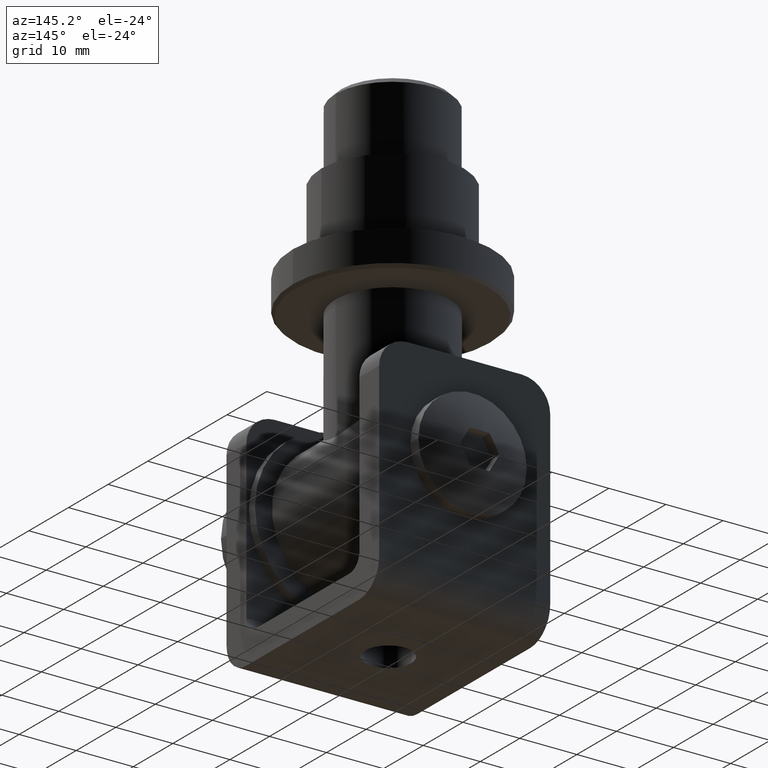
[diagram: clean part render]
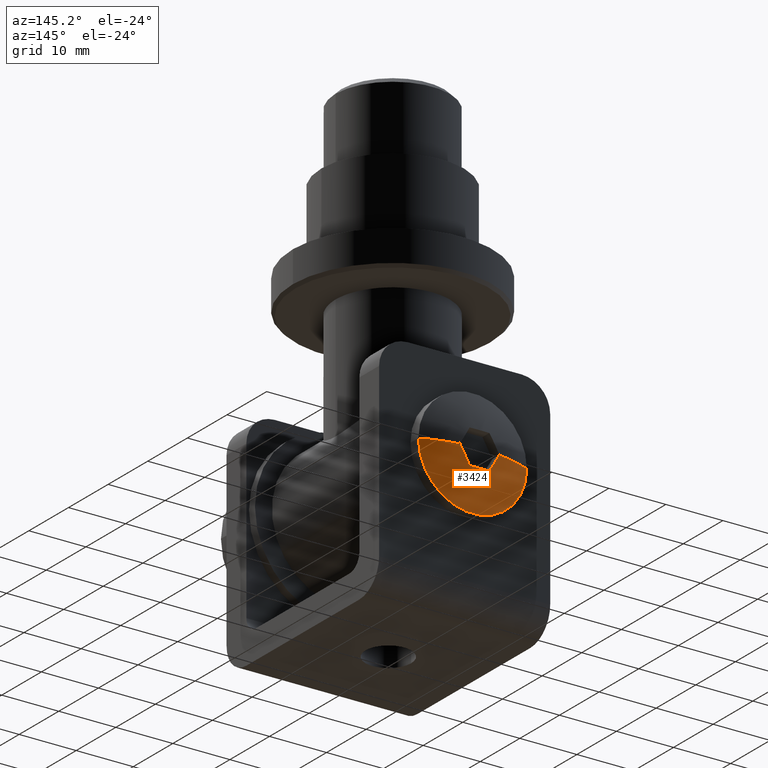
[diagram: same view with one face highlighted and labeled with its STEP entity id]
A machine part, auxiliary view. The second image highlights one B-rep face of the part: STEP entity #3424.
In plain terms, the highlighted spherical surface has radius 23.5625 mm.
Its self-contained STEP definition (entity closure, byte-faithful):
#204 = AXIS2_PLACEMENT_3D ( 'NONE', #3893, #12723, #1467 ) ;
#390 = VERTEX_POINT ( 'NONE', #2482 ) ;
#409 = VERTEX_POINT ( 'NONE', #12139 ) ;
#485 = ORIENTED_EDGE ( 'NONE', *, *, #9597, .F. ) ;
#818 = CARTESIAN_POINT ( 'NONE',  ( -9.499999999999996447, 16.99999999999999289, 1.163414459189984894E-15 ) ) ;
#1407 = CARTESIAN_POINT ( 'NONE',  ( 9.499999999999994671, 16.99999999999999289, 0.000000000000000000 ) ) ;
#1467 = DIRECTION ( 'NONE',  ( 1.000000000000000000, 0.000000000000000000, 0.000000000000000000 ) ) ;
#1526 = EDGE_CURVE ( 'NONE', #10310, #13636, #14276, .T. ) ;
#2274 = VERTEX_POINT ( 'NONE', #4444 ) ;
#2327 = EDGE_CURVE ( 'NONE', #390, #2274, #12900, .T. ) ;
#2381 = CARTESIAN_POINT ( 'NONE',  ( 1.020731822104737683E-15, -4.562499999999983125, 0.000000000000000000 ) ) ;
#2482 = CARTESIAN_POINT ( 'NONE',  ( 3.464101615137753054, 18.74396704779598011, -8.673617379884035472E-16 ) ) ;
#3424 = ADVANCED_FACE ( 'NONE', ( #6429 ), #14629, .T. ) ;
#3528 = CARTESIAN_POINT ( 'NONE',  ( -3.464101615137755719, 18.74396704779598011, 0.000000000000000000 ) ) ;
#3704 = DIRECTION ( 'NONE',  ( 1.000000000000000000, 0.000000000000000000, -1.224646799147353207E-16 ) ) ;
#3893 = CARTESIAN_POINT ( 'NONE',  ( -1.699747204224042463E-15, 16.99999999999999645, 0.000000000000000000 ) ) ;
#4444 = CARTESIAN_POINT ( 'NONE',  ( 1.732050807568875195, 18.74396704779598011, -3.000000000000000000 ) ) ;
#4993 = CARTESIAN_POINT ( 'NONE',  ( 1.020731822104737683E-15, -4.562499999999983125, 0.000000000000000000 ) ) ;
#5337 = CARTESIAN_POINT ( 'NONE',  ( 6.451531724204477776E-16, -4.562499999999983125, -3.000000000000000000 ) ) ;
#6172 = DIRECTION ( 'NONE',  ( 1.224646799147353207E-16, 1.224464690007432993E-32, 1.000000000000000000 ) ) ;
#6429 = FACE_OUTER_BOUND ( 'NONE', #14698, .T. ) ;
#6996 = DIRECTION ( 'NONE',  ( -0.5000000000000002220, -2.842867367957221400E-14, -0.8660254037844384856 ) ) ;
#8015 = VERTEX_POINT ( 'NONE', #1407 ) ;
#8279 = ORIENTED_EDGE ( 'NONE', *, *, #9246, .T. ) ;
#8697 = DIRECTION ( 'NONE',  ( 0.000000000000000000, 0.000000000000000000, -1.000000000000000000 ) ) ;
#8749 = CARTESIAN_POINT ( 'NONE',  ( 1.020731822104737683E-15, -4.562499999999983125, 0.000000000000000000 ) ) ;
#8846 = DIRECTION ( 'NONE',  ( -1.000000000000000000, 0.000000000000000000, 0.000000000000000000 ) ) ;
#9246 = EDGE_CURVE ( 'NONE', #390, #8015, #10229, .T. ) ;
#9439 = CARTESIAN_POINT ( 'NONE',  ( 2.598076211353313791, -4.562499999999983125, -1.499999999999999334 ) ) ;
#9590 = DIRECTION ( 'NONE',  ( -0.8660254037844385966, -0.000000000000000000, 0.5000000000000003331 ) ) ;
#9597 = EDGE_CURVE ( 'NONE', #13636, #8015, #10909, .T. ) ;
#10125 = AXIS2_PLACEMENT_3D ( 'NONE', #15704, #15762, #10831 ) ;
#10229 = CIRCLE ( 'NONE', #15661, 23.56249999999997868 ) ;
#10310 = VERTEX_POINT ( 'NONE', #3528 ) ;
#10831 = DIRECTION ( 'NONE',  ( -0.5000000000000000000, -2.842867367957222031E-14, 0.8660254037844387076 ) ) ;
#10909 = CIRCLE ( 'NONE', #204, 9.499999999999996447 ) ;
#11186 = DIRECTION ( 'NONE',  ( 1.000000000000000000, 1.104333247306191195E-16, 0.000000000000000000 ) ) ;
#11372 = ORIENTED_EDGE ( 'NONE', *, *, #14612, .F. ) ;
#11481 = AXIS2_PLACEMENT_3D ( 'NONE', #5337, #12909, #15351 ) ;
#11876 = CIRCLE ( 'NONE', #10125, 23.37073824786027387 ) ;
#12139 = CARTESIAN_POINT ( 'NONE',  ( -1.732050807568878747, 18.74396704779598011, -3.000000000000000000 ) ) ;
#12260 = CIRCLE ( 'NONE', #11481, 23.37073824786027387 ) ;
#12607 = EDGE_CURVE ( 'NONE', #409, #10310, #11876, .T. ) ;
#12723 = DIRECTION ( 'NONE',  ( 9.998512966023779340E-17, -1.000000000000000000, -0.000000000000000000 ) ) ;
#12753 = ORIENTED_EDGE ( 'NONE', *, *, #2327, .F. ) ;
#12900 = CIRCLE ( 'NONE', #13725, 23.37073824786027743 ) ;
#12909 = DIRECTION ( 'NONE',  ( 1.251928832280966435E-16, 0.000000000000000000, 1.000000000000000000 ) ) ;
#13322 = AXIS2_PLACEMENT_3D ( 'NONE', #4993, #15279, #11186 ) ;
#13519 = ORIENTED_EDGE ( 'NONE', *, *, #1526, .F. ) ;
#13636 = VERTEX_POINT ( 'NONE', #818 ) ;
#13725 = AXIS2_PLACEMENT_3D ( 'NONE', #9439, #9590, #6996 ) ;
#13934 = AXIS2_PLACEMENT_3D ( 'NONE', #2381, #6172, #3704 ) ;
#14276 = CIRCLE ( 'NONE', #13934, 23.56249999999997868 ) ;
#14612 = EDGE_CURVE ( 'NONE', #2274, #409, #12260, .T. ) ;
#14629 = SPHERICAL_SURFACE ( 'NONE', #13322, 23.56249999999997868 ) ;
#14698 = EDGE_LOOP ( 'NONE', ( #13519, #14706, #11372, #12753, #8279, #485 ) ) ;
#14706 = ORIENTED_EDGE ( 'NONE', *, *, #12607, .F. ) ;
#15279 = DIRECTION ( 'NONE',  ( 0.000000000000000000, -0.000000000000000000, 1.000000000000000000 ) ) ;
#15351 = DIRECTION ( 'NONE',  ( -1.000000000000000000, -7.088611844384195741E-15, 1.298960285620140525E-16 ) ) ;
#15661 = AXIS2_PLACEMENT_3D ( 'NONE', #8749, #8697, #8846 ) ;
#15704 = CARTESIAN_POINT ( 'NONE',  ( -2.598076211353316900, -4.562499999999983125, -1.500000000000000888 ) ) ;
#15762 = DIRECTION ( 'NONE',  ( 0.8660254037844387076, 0.000000000000000000, 0.5000000000000000000 ) ) ;